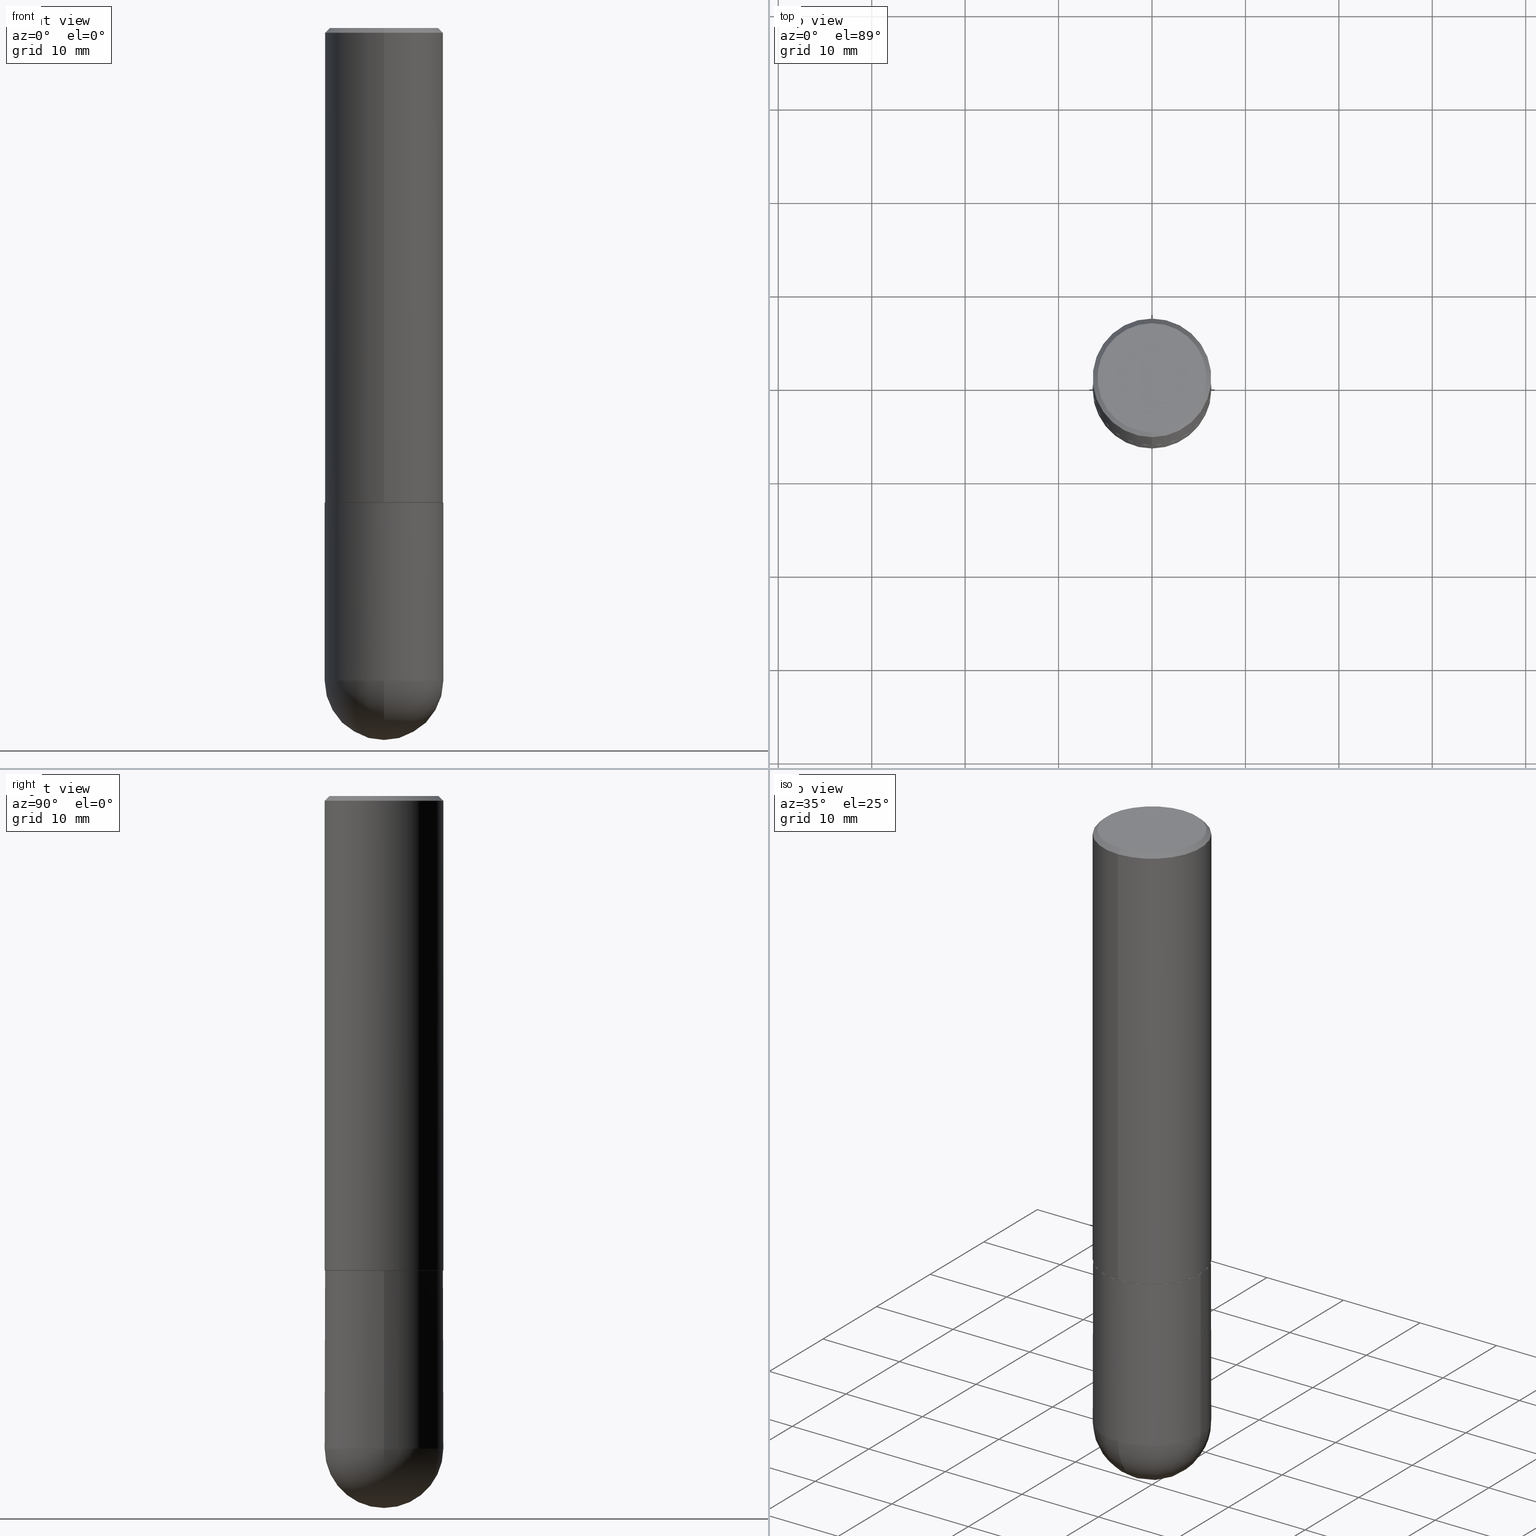
[diagram: canonical four-view strip — front | top / right | iso, engineering-drawing reading convention]
A machine part, canonical four-view strip (front | top / right | iso — engineering-drawing reading convention). The complete STEP part file that produces these views, byte-faithful:
ISO-10303-21;
HEADER;
FILE_DESCRIPTION (( 'STEP AP203' ),
    '1' );
FILE_NAME ('39364.STEP',
    '2024-02-21T19:37:25',
    ( '' ),
    ( '' ),
    'SwSTEP 2.0',
    'SolidWorks 2023',
    '' );
FILE_SCHEMA (( 'CONFIG_CONTROL_DESIGN' ));
ENDSEC;

DATA;
#1 = CARTESIAN_POINT ( 'NONE',  ( 4.888550873469898599E-29, -6.979387091779629703E-15, -1.999000000000000110 ) ) ;
#2 = EDGE_CURVE ( 'NONE', #392, #302, #327, .T. ) ;
#3 = DIRECTION ( 'NONE',  ( -2.445498185827862871E-29, 3.491439265522576099E-15, 1.000000000000000000 ) ) ;
#4 = FACE_OUTER_BOUND ( 'NONE', #239, .T. ) ;
#5 = VECTOR ( 'NONE', #3, 39.37007874015748143 ) ;
#6 = CC_DESIGN_SECURITY_CLASSIFICATION ( #200, ( #232 ) ) ;
#7 = EDGE_CURVE ( 'NONE', #302, #392, #145, .T. ) ;
#8 = CARTESIAN_POINT ( 'NONE',  ( 1.675911042644703577E-15, 0.2299999999999998712, -7.048649206616136781E-16 ) ) ;
#9 = DIRECTION ( 'NONE',  ( 0.000000000000000000, 0.000000000000000000, 1.000000000000000000 ) ) ;
#10 = ORIENTED_EDGE ( 'NONE', *, *, #156, .T. ) ;
#11 = EDGE_LOOP ( 'NONE', ( #298, #42 ) ) ;
#12 = EDGE_CURVE ( 'NONE', #401, #45, #28, .T. ) ;
#13 = AXIS2_PLACEMENT_3D ( 'NONE', #212, #318, #79 ) ;
#14 = AXIS2_PLACEMENT_3D ( 'NONE', #236, #357, #362 ) ;
#15 = CARTESIAN_POINT ( 'NONE',  ( 4.890996371655727423E-29, -6.982878531045153777E-15, -2.000000000000000444 ) ) ;
#16 = ORIENTED_EDGE ( 'NONE', *, *, #375, .F. ) ;
#17 = APPLICATION_PROTOCOL_DEFINITION ( 'international standard', 'config_control_design', 1994, #90 ) ;
#18 = ORIENTED_EDGE ( 'NONE', *, *, #72, .F. ) ;
#19 = APPROVAL_STATUS ( 'not_yet_approved' ) ;
#20 = ORIENTED_EDGE ( 'NONE', *, *, #197, .T. ) ;
#21 = LOCAL_TIME ( 14, 37, 25.00000000000000000, #179 ) ;
#22 = DATE_TIME_ROLE ( 'classification_date' ) ;
#23 = EDGE_LOOP ( 'NONE', ( #142, #364, #234, #40 ) ) ;
#24 = DIRECTION ( 'NONE',  ( -2.445498185827862591E-29, 3.491439265522576099E-15, 1.000000000000000000 ) ) ;
#25 = APPROVAL_DATE_TIME ( #115, #193 ) ;
#26 = CARTESIAN_POINT ( 'NONE',  ( 1.606081415867840278E-15, 0.2299999999999998712, -7.539479758659027611E-16 ) ) ;
#27 = ADVANCED_FACE ( 'NONE', ( #149 ), #280, .T. ) ;
#28 = CIRCLE ( 'NONE', #159, 0.2500000000000000000 ) ;
#29 = DIRECTION ( 'NONE',  ( -2.445468806185136597E-29, 3.491481338843145583E-15, 1.000000000000000000 ) ) ;
#30 = FACE_OUTER_BOUND ( 'NONE', #144, .T. ) ;
#31 = DIRECTION ( 'NONE',  ( -6.982962677686265922E-15, -1.000000000000000000, 3.278217592397112312E-15 ) ) ;
#32 = AXIS2_PLACEMENT_3D ( 'NONE', #342, #24, #251 ) ;
#33 = DIRECTION ( 'NONE',  ( -2.445498185827863151E-29, 3.491439265522576099E-15, 1.000000000000000000 ) ) ;
#34 = CIRCLE ( 'NONE', #256, 0.2500000000000002776 ) ;
#35 = ADVANCED_FACE ( 'NONE', ( #218 ), #54, .F. ) ;
#36 = LINE ( 'NONE', #351, #39 ) ;
#37 = CARTESIAN_POINT ( 'NONE',  ( -1.776356839400184989E-15, -0.2500000000000098810, -2.749999999999999556 ) ) ;
#38 = CARTESIAN_POINT ( 'NONE',  ( 6.725039217009125641E-29, -9.601573681818653015E-15, -2.750000000000000444 ) ) ;
#39 = VECTOR ( 'NONE', #349, 39.37007874015748143 ) ;
#40 = ORIENTED_EDGE ( 'NONE', *, *, #7, .T. ) ;
#41 = DIRECTION ( 'NONE',  ( -6.982962677686265133E-15, -1.000000000000000000, 3.291383124896702687E-15 ) ) ;
#42 = ORIENTED_EDGE ( 'NONE', *, *, #289, .F. ) ;
#43 = CARTESIAN_POINT ( 'NONE',  ( -2.400650449139562707E-45, 3.427410124241351957E-31, 9.816611040857844957E-17 ) ) ;
#44 = ADVANCED_FACE ( 'NONE', ( #121 ), #352, .T. ) ;
#45 = VERTEX_POINT ( 'NONE', #253 ) ;
#46 = AXIS2_PLACEMENT_3D ( 'NONE', #393, #109, #69 ) ;
#47 = DATE_AND_TIME ( #148, #241 ) ;
#48 = ORIENTED_EDGE ( 'NONE', *, *, #124, .F. ) ;
#49 = ADVANCED_FACE ( 'NONE', ( #151 ), #215, .T. ) ;
#50 = PERSON_AND_ORGANIZATION_ROLE ( 'classification_officer' ) ;
#51 = CARTESIAN_POINT ( 'NONE',  ( 4.890937612370273754E-29, -6.982962677686291954E-15, -2.000000000000000444 ) ) ;
#52 = AXIS2_PLACEMENT_3D ( 'NONE', #407, #374, #311 ) ;
#53 = LOCAL_TIME ( 14, 37, 25.00000000000000000, #312 ) ;
#54 = PLANE ( 'NONE',  #255 ) ;
#55 = ORIENTED_EDGE ( 'NONE', *, *, #375, .T. ) ;
#56 = PERSON_AND_ORGANIZATION_ROLE ( 'creator' ) ;
#57 = CARTESIAN_POINT ( 'NONE',  ( -0.2500000000000000000, -6.515911340352222809E-15, -2.750000000000000444 ) ) ;
#58 = APPROVAL_PERSON_ORGANIZATION ( #177, #111, #187 ) ;
#59 = ORIENTED_EDGE ( 'NONE', *, *, #106, .T. ) ;
#60 = CARTESIAN_POINT ( 'NONE',  ( 1.745740669421632745E-15, 0.2499999999999902300, -2.750000000000001332 ) ) ;
#61 = ADVANCED_FACE ( 'NONE', ( #81 ), #191, .F. ) ;
#62 = DIRECTION ( 'NONE',  ( -1.000000000000000000, 6.982962677686265922E-15, -4.876176775795935793E-29 ) ) ;
#63 = VECTOR ( 'NONE', #221, 39.37007874015748143 ) ;
#64 = CARTESIAN_POINT ( 'NONE',  ( 4.890996371655739930E-31, -6.982878531045171230E-17, -0.02000000000000005593 ) ) ;
#65 =( GEOMETRIC_REPRESENTATION_CONTEXT ( 3 ) GLOBAL_UNCERTAINTY_ASSIGNED_CONTEXT ( ( #367 ) ) GLOBAL_UNIT_ASSIGNED_CONTEXT ( ( #169, #273, #135 ) ) REPRESENTATION_CONTEXT ( 'NONE', 'WORKASPACE' ) );
#66 = LINE ( 'NONE', #192, #63 ) ;
#67 = CARTESIAN_POINT ( 'NONE',  ( 1.745740669421615390E-15, 0.2499999999999930334, -2.000000000000000888 ) ) ;
#68 = EDGE_LOOP ( 'NONE', ( #268, #55 ) ) ;
#69 = DIRECTION ( 'NONE',  ( -6.982962677686265133E-15, -1.000000000000000000, 3.291383124896702687E-15 ) ) ;
#70 = ORIENTED_EDGE ( 'NONE', *, *, #129, .T. ) ;
#71 = VERTEX_POINT ( 'NONE', #89 ) ;
#72 = EDGE_CURVE ( 'NONE', #108, #287, #150, .T. ) ;
#73 = ORIENTED_EDGE ( 'NONE', *, *, #87, .F. ) ;
#74 = AXIS2_PLACEMENT_3D ( 'NONE', #95, #380, #128 ) ;
#75 = DIRECTION ( 'NONE',  ( -2.445498185827863151E-29, 3.491439265522576099E-15, 1.000000000000000000 ) ) ;
#76 = VERTEX_POINT ( 'NONE', #57 ) ;
#77 = PRODUCT_DEFINITION ( 'UNKNOWN', '', #232, #85 ) ;
#78 = APPROVAL_STATUS ( 'not_yet_approved' ) ;
#79 = DIRECTION ( 'NONE',  ( -6.982962677686265922E-15, -1.000000000000000000, 3.483106191921935554E-15 ) ) ;
#80 = CALENDAR_DATE ( 2024, 21, 2 ) ;
#81 = FACE_OUTER_BOUND ( 'NONE', #11, .T. ) ;
#82 = AXIS2_PLACEMENT_3D ( 'NONE', #363, #134, #266 ) ;
#83 = EDGE_CURVE ( 'NONE', #176, #360, #119, .T. ) ;
#84 = PERSON_AND_ORGANIZATION ( #395, #146 ) ;
#85 = DESIGN_CONTEXT ( 'detailed design', #263, 'design' ) ;
#86 = EDGE_LOOP ( 'NONE', ( #18, #112, #168, #48 ) ) ;
#87 = EDGE_CURVE ( 'NONE', #389, #170, #205, .T. ) ;
#88 = PERSON_AND_ORGANIZATION ( #395, #146 ) ;
#89 = CARTESIAN_POINT ( 'NONE',  ( -1.646519519465166573E-15, -0.2299999999999998712, 9.011971414787705033E-16 ) ) ;
#90 = APPLICATION_CONTEXT ( 'configuration controlled 3d designs of mechanical parts and assemblies' ) ;
#91 = FACE_OUTER_BOUND ( 'NONE', #68, .T. ) ;
#92 = AXIS2_PLACEMENT_3D ( 'NONE', #38, #238, #303 ) ;
#93 = CARTESIAN_POINT ( 'NONE',  ( 1.772804125721499264E-15, 0.2489999999999930325, -2.000000000000001332 ) ) ;
#94 = CARTESIAN_POINT ( 'NONE',  ( 0.2500000000000000000, -1.003800884917404153E-14, -2.750000000000000444 ) ) ;
#95 = CARTESIAN_POINT ( 'NONE',  ( 6.725039217009125641E-29, -9.601573681818653015E-15, -2.750000000000000444 ) ) ;
#96 = ADVANCED_FACE ( 'NONE', ( #91 ), #346, .F. ) ;
#97 = CC_DESIGN_PERSON_AND_ORGANIZATION_ASSIGNMENT ( #344, #56, ( #232 ) ) ;
#98 = DIRECTION ( 'NONE',  ( -6.982962677686266711E-15, -1.000000000000000000, 3.491439265522576099E-15 ) ) ;
#99 = CONICAL_SURFACE ( 'NONE', #277, 0.2500000000000000000, 0.7853981633974477239 ) ;
#100 = DIRECTION ( 'NONE',  ( 6.982962677686265922E-15, 1.000000000000000000, -3.483106191921935554E-15 ) ) ;
#101 = DIRECTION ( 'NONE',  ( -6.982962677686265133E-15, -1.000000000000000000, 3.291383124896702687E-15 ) ) ;
#102 = ORIENTED_EDGE ( 'NONE', *, *, #267, .F. ) ;
#103 = DIRECTION ( 'NONE',  ( 1.000000000000000000, -6.982962677686266711E-15, 0.000000000000000000 ) ) ;
#104 = CIRCLE ( 'NONE', #74, 0.2500000000000000000 ) ;
#105 = ORIENTED_EDGE ( 'NONE', *, *, #2, .F. ) ;
#106 = EDGE_CURVE ( 'NONE', #173, #401, #66, .T. ) ;
#107 = DIRECTION ( 'NONE',  ( -2.445468806185136597E-29, 3.491481338843145583E-15, 1.000000000000000000 ) ) ;
#108 = VERTEX_POINT ( 'NONE', #93 ) ;
#109 = DIRECTION ( 'NONE',  ( -2.445498185827863151E-29, 3.491439265522576099E-15, 1.000000000000000000 ) ) ;
#110 = ORIENTED_EDGE ( 'NONE', *, *, #228, .F. ) ;
#111 = APPROVAL ( #19, 'UNSPECIFIED' ) ;
#112 = ORIENTED_EDGE ( 'NONE', *, *, #289, .T. ) ;
#113 = PERSON_AND_ORGANIZATION ( #395, #146 ) ;
#114 = ORIENTED_EDGE ( 'NONE', *, *, #386, .T. ) ;
#115 = DATE_AND_TIME ( #80, #53 ) ;
#116 = DIRECTION ( 'NONE',  ( -6.982962677686266711E-15, -1.000000000000000000, 3.491439265522576099E-15 ) ) ;
#117 = ADVANCED_FACE ( 'NONE', ( #4 ), #152, .T. ) ;
#118 = APPROVAL_ROLE ( '' ) ;
#119 = LINE ( 'NONE', #248, #405 ) ;
#120 = CC_DESIGN_APPROVAL ( #310, ( #77 ) ) ;
#121 = FACE_OUTER_BOUND ( 'NONE', #230, .T. ) ;
#122 = APPROVAL_ROLE ( '' ) ;
#123 = DIRECTION ( 'NONE',  ( -1.000000000000000000, 7.105427357601001070E-15, -4.926315508542082329E-29 ) ) ;
#124 = EDGE_CURVE ( 'NONE', #287, #360, #224, .T. ) ;
#125 = FACE_OUTER_BOUND ( 'NONE', #307, .T. ) ;
#126 = AXIS2_PLACEMENT_3D ( 'NONE', #240, #9, #203 ) ;
#127 = DIRECTION ( 'NONE',  ( -1.000000000000000000, 6.982962677686265922E-15, -4.883557194083113462E-29 ) ) ;
#128 = DIRECTION ( 'NONE',  ( 1.000000000000000000, -6.982962677686270655E-15, 0.000000000000000000 ) ) ;
#129 = EDGE_CURVE ( 'NONE', #360, #392, #353, .T. ) ;
#130 = CARTESIAN_POINT ( 'NONE',  ( -0.2500000000000000000, 1.776356839400250465E-15, -1.229733772563726445E-29 ) ) ;
#131 = LINE ( 'NONE', #262, #296 ) ;
#132 = CIRCLE ( 'NONE', #160, 0.2489999999999999991 ) ;
#133 = CARTESIAN_POINT ( 'NONE',  ( 7.015976219256266741E-29, -1.093331829968014633E-14, -3.000000000000000888 ) ) ;
#134 = DIRECTION ( 'NONE',  ( -2.445468806185136597E-29, 3.491481338843145583E-15, 1.000000000000000000 ) ) ;
#135 =( NAMED_UNIT ( * ) SI_UNIT ( $, .STERADIAN. ) SOLID_ANGLE_UNIT ( ) );
#136 = AXIS2_PLACEMENT_3D ( 'NONE', #43, #75, #388 ) ;
#137 = EDGE_LOOP ( 'NONE', ( #10, #244 ) ) ;
#138 = DIRECTION ( 'NONE',  ( -2.445498185827863151E-29, 3.491439265522576099E-15, 1.000000000000000000 ) ) ;
#139 = ORIENTED_EDGE ( 'NONE', *, *, #313, .F. ) ;
#140 = CC_DESIGN_DATE_AND_TIME_ASSIGNMENT ( #308, #22, ( #200 ) ) ;
#141 = MECHANICAL_CONTEXT ( 'NONE', #90, 'mechanical' ) ;
#142 = ORIENTED_EDGE ( 'NONE', *, *, #197, .F. ) ;
#143 = COORDINATED_UNIVERSAL_TIME_OFFSET ( 5, 0, .BEHIND. ) ;
#144 = EDGE_LOOP ( 'NONE', ( #272, #336, #105, #309 ) ) ;
#145 = CIRCLE ( 'NONE', #377, 0.2500000000000000000 ) ;
#146 = ORGANIZATION ( 'UNSPECIFIED', 'UNSPECIFIED', '' ) ;
#147 = EDGE_CURVE ( 'NONE', #76, #45, #409, .T. ) ;
#148 = CALENDAR_DATE ( 2024, 21, 2 ) ;
#149 = FACE_OUTER_BOUND ( 'NONE', #394, .T. ) ;
#150 = LINE ( 'NONE', #282, #249 ) ;
#151 = FACE_OUTER_BOUND ( 'NONE', #278, .T. ) ;
#152 = CONICAL_SURFACE ( 'NONE', #189, 0.2500000000000000000, 0.7853981633974477239 ) ;
#153 = CIRCLE ( 'NONE', #286, 0.2500000000000000000 ) ;
#154 = ORIENTED_EDGE ( 'NONE', *, *, #2, .T. ) ;
#155 = ADVANCED_FACE ( 'NONE', ( #30 ), #223, .T. ) ;
#156 = EDGE_CURVE ( 'NONE', #304, #71, #291, .T. ) ;
#157 = CARTESIAN_POINT ( 'NONE',  ( 4.888550873469898599E-29, -6.979387091779629703E-15, -1.999000000000000110 ) ) ;
#158 = CARTESIAN_POINT ( 'NONE',  ( 4.890996371655727423E-29, -6.982878531045153777E-15, -2.000000000000000444 ) ) ;
#159 = AXIS2_PLACEMENT_3D ( 'NONE', #51, #29, #180 ) ;
#160 = AXIS2_PLACEMENT_3D ( 'NONE', #15, #175, #101 ) ;
#161 = CARTESIAN_POINT ( 'NONE',  ( -1.715124499442882299E-15, -0.2500000000000000555, -0.01999999999999918510 ) ) ;
#162 = CC_DESIGN_PERSON_AND_ORGANIZATION_ASSIGNMENT ( #250, #365, ( #210 ) ) ;
#163 = DIRECTION ( 'NONE',  ( 2.445498185827863151E-29, -3.491439265522576099E-15, -1.000000000000000000 ) ) ;
#164 = DIRECTION ( 'NONE',  ( -4.851104656540961119E-15, -0.7071067811865495711, -0.7071067811865454633 ) ) ;
#165 = CARTESIAN_POINT ( 'NONE',  ( -1.715124499442882299E-15, -0.2500000000000000555, -0.01999999999999918510 ) ) ;
#166 = CC_DESIGN_APPROVAL ( #193, ( #200 ) ) ;
#167 = EDGE_CURVE ( 'NONE', #304, #302, #36, .T. ) ;
#168 = ORIENTED_EDGE ( 'NONE', *, *, #83, .T. ) ;
#169 =( CONVERSION_BASED_UNIT ( 'INCH', #329 ) LENGTH_UNIT ( ) NAMED_UNIT ( #359 ) );
#170 = VERTEX_POINT ( 'NONE', #37 ) ;
#171 = DIRECTION ( 'NONE',  ( 1.000000000000000000, -6.982962677686265922E-15, 4.883557194083112340E-29 ) ) ;
#172 = CIRCLE ( 'NONE', #225, 0.2489999999999999991 ) ;
#173 = VERTEX_POINT ( 'NONE', #94 ) ;
#174 = CC_DESIGN_PERSON_AND_ORGANIZATION_ASSIGNMENT ( #113, #306, ( #77 ) ) ;
#175 = DIRECTION ( 'NONE',  ( -2.445498185827863151E-29, 3.491439265522576099E-15, 1.000000000000000000 ) ) ;
#176 = VERTEX_POINT ( 'NONE', #384 ) ;
#177 = PERSON_AND_ORGANIZATION ( #395, #146 ) ;
#178 = ORIENTED_EDGE ( 'NONE', *, *, #167, .F. ) ;
#179 = COORDINATED_UNIVERSAL_TIME_OFFSET ( 5, 0, .BEHIND. ) ;
#180 = DIRECTION ( 'NONE',  ( 1.000000000000000000, -6.982962677686266711E-15, 0.000000000000000000 ) ) ;
#181 = AXIS2_PLACEMENT_3D ( 'NONE', #403, #219, #116 ) ;
#182 = CC_DESIGN_APPROVAL ( #111, ( #232 ) ) ;
#183 = ADVANCED_FACE ( 'NONE', ( #258 ), #99, .T. ) ;
#184 = VERTEX_POINT ( 'NONE', #60 ) ;
#185 = APPROVAL_STATUS ( 'not_yet_approved' ) ;
#186 = EDGE_LOOP ( 'NONE', ( #366, #338, #274, #397 ) ) ;
#187 = APPROVAL_ROLE ( '' ) ;
#188 = DIRECTION ( 'NONE',  ( -4.937700262164378437E-15, -0.7071067811865208164, 0.7071067811865739960 ) ) ;
#189 = AXIS2_PLACEMENT_3D ( 'NONE', #226, #163, #259 ) ;
#190 = AXIS2_PLACEMENT_3D ( 'NONE', #254, #378, #320 ) ;
#191 = PLANE ( 'NONE',  #32 ) ;
#192 = CARTESIAN_POINT ( 'NONE',  ( 0.2500000000000000000, -1.745740669421566678E-15, 1.219044193948983948E-29 ) ) ;
#193 = APPROVAL ( #185, 'UNSPECIFIED' ) ;
#194 = CARTESIAN_POINT ( 'NONE',  ( 1.776356839400276103E-15, 0.2499999999999933109, -1.999000000000000998 ) ) ;
#195 = CIRCLE ( 'NONE', #328, 0.2500000000000001110 ) ;
#196 = DIRECTION ( 'NONE',  ( -2.445498185827863151E-29, 3.491439265522576099E-15, 1.000000000000000000 ) ) ;
#197 = EDGE_CURVE ( 'NONE', #71, #392, #325, .T. ) ;
#198 = DIRECTION ( 'NONE',  ( -6.982962677686265922E-15, -1.000000000000000000, 3.491439265522576099E-15 ) ) ;
#199 = DIRECTION ( 'NONE',  ( -2.445468806185136877E-29, 3.491481338843145188E-15, 1.000000000000000000 ) ) ;
#200 = SECURITY_CLASSIFICATION ( '', '', #369 ) ;
#201 = EDGE_LOOP ( 'NONE', ( #73, #114, #316, #265 ) ) ;
#202 = CARTESIAN_POINT ( 'NONE',  ( 6.393919439095240515E-29, -1.007575604995870173E-14, -2.750000000000000444 ) ) ;
#203 = DIRECTION ( 'NONE',  ( 1.000000000000000000, 0.000000000000000000, 0.000000000000000000 ) ) ;
#204 = ORIENTED_EDGE ( 'NONE', *, *, #294, .T. ) ;
#205 = CIRCLE ( 'NONE', #322, 0.2500000000000001110 ) ;
#206 = AXIS2_PLACEMENT_3D ( 'NONE', #410, #127, #382 ) ;
#207 = ORIENTED_EDGE ( 'NONE', *, *, #305, .T. ) ;
#208 = PERSON_AND_ORGANIZATION ( #395, #146 ) ;
#209 = ORIENTED_EDGE ( 'NONE', *, *, #7, .F. ) ;
#210 = PRODUCT ( '39364', '39364', '', ( #141 ) ) ;
#211 = DATE_AND_TIME ( #337, #301 ) ;
#212 = CARTESIAN_POINT ( 'NONE',  ( 4.890996371655739930E-31, -6.982878531045171230E-17, -0.02000000000000005593 ) ) ;
#213 = DIRECTION ( 'NONE',  ( 6.982962677686265922E-15, 1.000000000000000000, -3.491439265522576099E-15 ) ) ;
#214 = AXIS2_PLACEMENT_3D ( 'NONE', #343, #246, #368 ) ;
#215 = CYLINDRICAL_SURFACE ( 'NONE', #214, 0.2500000000000000000 ) ;
#216 = APPROVAL_DATE_TIME ( #339, #111 ) ;
#217 = CC_DESIGN_PERSON_AND_ORGANIZATION_ASSIGNMENT ( #84, #50, ( #200 ) ) ;
#218 = FACE_OUTER_BOUND ( 'NONE', #137, .T. ) ;
#219 = DIRECTION ( 'NONE',  ( -2.445498185827863151E-29, 3.491439265522576099E-15, 1.000000000000000000 ) ) ;
#220 = CIRCLE ( 'NONE', #92, 0.2500000000000000000 ) ;
#221 = DIRECTION ( 'NONE',  ( -2.445468806185136877E-29, 3.491481338843145188E-15, 1.000000000000000000 ) ) ;
#222 = FACE_OUTER_BOUND ( 'NONE', #186, .T. ) ;
#223 = CYLINDRICAL_SURFACE ( 'NONE', #261, 0.2500000000000001110 ) ;
#224 = CIRCLE ( 'NONE', #260, 0.2500000000000002776 ) ;
#225 = AXIS2_PLACEMENT_3D ( 'NONE', #158, #138, #41 ) ;
#226 = CARTESIAN_POINT ( 'NONE',  ( 4.890996371655739930E-31, -6.982878531045171230E-17, -0.02000000000000005593 ) ) ;
#227 = DIRECTION ( 'NONE',  ( 2.445498185827863151E-29, -3.491439265522576099E-15, -1.000000000000000000 ) ) ;
#228 = EDGE_CURVE ( 'NONE', #287, #302, #131, .T. ) ;
#229 = CARTESIAN_POINT ( 'NONE',  ( 4.890937612370273754E-29, -6.982962677686291954E-15, -2.000000000000000444 ) ) ;
#230 = EDGE_LOOP ( 'NONE', ( #204, #300, #102, #333 ) ) ;
#231 = CLOSED_SHELL ( 'NONE', ( #49, #283, #412, #96, #281 ) ) ;
#232 = PRODUCT_DEFINITION_FORMATION_WITH_SPECIFIED_SOURCE ( 'ANY', '', #210, .NOT_KNOWN. ) ;
#233 = FACE_OUTER_BOUND ( 'NONE', #201, .T. ) ;
#234 = ORIENTED_EDGE ( 'NONE', *, *, #167, .T. ) ;
#235 = MANIFOLD_SOLID_BREP ( 'Body-Move/Copy2[2]', #398 ) ;
#236 = CARTESIAN_POINT ( 'NONE',  ( 6.393919439095240515E-29, -1.007575604995870173E-14, -2.750000000000000444 ) ) ;
#237 = EDGE_CURVE ( 'NONE', #76, #170, #104, .T. ) ;
#238 = DIRECTION ( 'NONE',  ( -2.445468806185136597E-29, 3.491481338843145583E-15, 1.000000000000000000 ) ) ;
#239 = EDGE_LOOP ( 'NONE', ( #139, #20, #154, #178 ) ) ;
#240 = CARTESIAN_POINT ( 'NONE',  ( 0.000000000000000000, 0.000000000000000000, 0.000000000000000000 ) ) ;
#241 = LOCAL_TIME ( 14, 37, 25.00000000000000000, #143 ) ;
#242 = ORIENTED_EDGE ( 'NONE', *, *, #147, .T. ) ;
#243 = APPLICATION_PROTOCOL_DEFINITION ( 'international standard', 'config_control_design', 1994, #263 ) ;
#244 = ORIENTED_EDGE ( 'NONE', *, *, #313, .T. ) ;
#245 = PRODUCT_RELATED_PRODUCT_CATEGORY ( 'detail', '', ( #210 ) ) ;
#246 = DIRECTION ( 'NONE',  ( -2.445468806185136597E-29, 3.491481338843145583E-15, 1.000000000000000000 ) ) ;
#247 = COORDINATED_UNIVERSAL_TIME_OFFSET ( 5, 0, .BEHIND. ) ;
#248 = CARTESIAN_POINT ( 'NONE',  ( -1.738757706743831162E-15, -0.2490000000000069658, -1.999999999999999778 ) ) ;
#249 = VECTOR ( 'NONE', #404, 39.37007874015748854 ) ;
#250 = PERSON_AND_ORGANIZATION ( #395, #146 ) ;
#251 = DIRECTION ( 'NONE',  ( -6.982962677686265922E-15, -1.000000000000000000, 3.491439265522576099E-15 ) ) ;
#252 = APPROVAL_DATE_TIME ( #211, #310 ) ;
#253 = CARTESIAN_POINT ( 'NONE',  ( -0.2500000000000000000, -6.515911340352221231E-15, -2.000000000000000444 ) ) ;
#254 = CARTESIAN_POINT ( 'NONE',  ( 0.000000000000000000, 0.000000000000000000, 0.000000000000000000 ) ) ;
#255 = AXIS2_PLACEMENT_3D ( 'NONE', #26, #408, #213 ) ;
#256 = AXIS2_PLACEMENT_3D ( 'NONE', #157, #288, #31 ) ;
#257 = ADVANCED_BREP_SHAPE_REPRESENTATION ( '39364', ( #371, #235, #126 ), #65 ) ;
#258 = FACE_OUTER_BOUND ( 'NONE', #23, .T. ) ;
#259 = DIRECTION ( 'NONE',  ( 6.982962677686265922E-15, 1.000000000000000000, -3.483106191921935554E-15 ) ) ;
#260 = AXIS2_PLACEMENT_3D ( 'NONE', #1, #324, #295 ) ;
#261 = AXIS2_PLACEMENT_3D ( 'NONE', #383, #33, #98 ) ;
#262 = CARTESIAN_POINT ( 'NONE',  ( 1.776356839400251254E-15, 0.2500000000000001110, -8.728598163806444193E-16 ) ) ;
#263 = APPLICATION_CONTEXT ( 'configuration controlled 3d designs of mechanical parts and assemblies' ) ;
#264 = CARTESIAN_POINT ( 'NONE',  ( 6.725039217009125641E-29, -9.601573681818653015E-15, -2.750000000000000444 ) ) ;
#265 = ORIENTED_EDGE ( 'NONE', *, *, #299, .F. ) ;
#266 = DIRECTION ( 'NONE',  ( 1.000000000000000000, -6.982962677686270655E-15, 0.000000000000000000 ) ) ;
#267 = EDGE_CURVE ( 'NONE', #360, #287, #34, .T. ) ;
#268 = ORIENTED_EDGE ( 'NONE', *, *, #12, .T. ) ;
#269 =( LENGTH_UNIT ( ) NAMED_UNIT ( * ) SI_UNIT ( $, .METRE. ) );
#270 = ORIENTED_EDGE ( 'NONE', *, *, #147, .F. ) ;
#271 = FACE_OUTER_BOUND ( 'NONE', #86, .T. ) ;
#272 = ORIENTED_EDGE ( 'NONE', *, *, #267, .T. ) ;
#273 =( NAMED_UNIT ( * ) PLANE_ANGLE_UNIT ( ) SI_UNIT ( $, .RADIAN. ) );
#274 = ORIENTED_EDGE ( 'NONE', *, *, #237, .F. ) ;
#275 = PRODUCT_DEFINITION_SHAPE ( 'NONE', 'NONE',  #77 ) ;
#276 = DATE_TIME_ROLE ( 'creation_date' ) ;
#277 = AXIS2_PLACEMENT_3D ( 'NONE', #64, #227, #100 ) ;
#278 = EDGE_LOOP ( 'NONE', ( #387, #242, #314, #330, #207 ) ) ;
#279 = PERSON_AND_ORGANIZATION ( #395, #146 ) ;
#280 = CYLINDRICAL_SURFACE ( 'NONE', #181, 0.2500000000000001110 ) ;
#281 = ADVANCED_FACE ( 'NONE', ( #125 ), #292, .T. ) ;
#282 = CARTESIAN_POINT ( 'NONE',  ( 1.769251412042698169E-15, 0.2489999999999930325, -2.000000000000001332 ) ) ;
#283 = ADVANCED_FACE ( 'NONE', ( #222 ), #290, .T. ) ;
#284 = SHAPE_DEFINITION_REPRESENTATION ( #275, #257 ) ;
#285 = DIRECTION ( 'NONE',  ( -6.982962677686265922E-15, -1.000000000000000000, 3.483106191921935554E-15 ) ) ;
#286 = AXIS2_PLACEMENT_3D ( 'NONE', #229, #107, #103 ) ;
#287 = VERTEX_POINT ( 'NONE', #194 ) ;
#288 = DIRECTION ( 'NONE',  ( -2.445498185827863151E-29, 3.491439265522576099E-15, 1.000000000000000000 ) ) ;
#289 = EDGE_CURVE ( 'NONE', #108, #176, #172, .T. ) ;
#290 = SPHERICAL_SURFACE ( 'NONE', #206, 0.2500000000000001110 ) ;
#291 = CIRCLE ( 'NONE', #406, 0.2299999999999998712 ) ;
#292 = CYLINDRICAL_SURFACE ( 'NONE', #190, 0.2500000000000000000 ) ;
#293 = CARTESIAN_POINT ( 'NONE',  ( -1.745740669421567467E-15, -0.2500000000000001110, 8.728598163806444193E-16 ) ) ;
#294 = EDGE_CURVE ( 'NONE', #176, #108, #132, .T. ) ;
#295 = DIRECTION ( 'NONE',  ( -6.982962677686265922E-15, -1.000000000000000000, 3.278217592397112312E-15 ) ) ;
#296 = VECTOR ( 'NONE', #354, 39.37007874015748143 ) ;
#297 = DIRECTION ( 'NONE',  ( -2.445468806185136597E-29, 3.491481338843145583E-15, 1.000000000000000000 ) ) ;
#298 = ORIENTED_EDGE ( 'NONE', *, *, #294, .F. ) ;
#299 = EDGE_CURVE ( 'NONE', #170, #173, #399, .T. ) ;
#300 = ORIENTED_EDGE ( 'NONE', *, *, #72, .T. ) ;
#301 = LOCAL_TIME ( 14, 37, 25.00000000000000000, #247 ) ;
#302 = VERTEX_POINT ( 'NONE', #385 ) ;
#303 = DIRECTION ( 'NONE',  ( 1.000000000000000000, -6.982962677686270655E-15, 0.000000000000000000 ) ) ;
#304 = VERTEX_POINT ( 'NONE', #8 ) ;
#305 = EDGE_CURVE ( 'NONE', #173, #184, #370, .T. ) ;
#306 = PERSON_AND_ORGANIZATION_ROLE ( 'creator' ) ;
#307 = EDGE_LOOP ( 'NONE', ( #270, #332, #355, #59, #16 ) ) ;
#308 = DATE_AND_TIME ( #315, #21 ) ;
#309 = ORIENTED_EDGE ( 'NONE', *, *, #129, .F. ) ;
#310 = APPROVAL ( #78, 'UNSPECIFIED' ) ;
#311 = DIRECTION ( 'NONE',  ( -6.982962677686265133E-15, -1.000000000000000000, 3.291383124896702687E-15 ) ) ;
#312 = COORDINATED_UNIVERSAL_TIME_OFFSET ( 5, 0, .BEHIND. ) ;
#313 = EDGE_CURVE ( 'NONE', #71, #304, #323, .T. ) ;
#314 = ORIENTED_EDGE ( 'NONE', *, *, #12, .F. ) ;
#315 = CALENDAR_DATE ( 2024, 21, 2 ) ;
#316 = ORIENTED_EDGE ( 'NONE', *, *, #305, .F. ) ;
#317 = CONICAL_SURFACE ( 'NONE', #46, 0.2489999999999999991, 0.7853981633974141952 ) ;
#318 = DIRECTION ( 'NONE',  ( -2.445498185827863151E-29, 3.491439265522576099E-15, 1.000000000000000000 ) ) ;
#319 = CC_DESIGN_PERSON_AND_ORGANIZATION_ASSIGNMENT ( #88, #402, ( #232 ) ) ;
#320 = DIRECTION ( 'NONE',  ( 1.000000000000000000, -6.982962677686266711E-15, 4.876176775795935793E-29 ) ) ;
#321 = DIRECTION ( 'NONE',  ( 2.438088387897960049E-29, -3.491481338843145188E-15, -1.000000000000000000 ) ) ;
#322 = AXIS2_PLACEMENT_3D ( 'NONE', #372, #123, #376 ) ;
#323 = CIRCLE ( 'NONE', #136, 0.2299999999999998712 ) ;
#324 = DIRECTION ( 'NONE',  ( -2.445498185827863151E-29, 3.491439265522576099E-15, 1.000000000000000000 ) ) ;
#325 = LINE ( 'NONE', #161, #347 ) ;
#326 = CARTESIAN_POINT ( 'NONE',  ( -1.745740669421519543E-15, -0.2500000000000072164, -1.998999999999999444 ) ) ;
#327 = CIRCLE ( 'NONE', #13, 0.2500000000000000000 ) ;
#328 = AXIS2_PLACEMENT_3D ( 'NONE', #202, #171, #391 ) ;
#329 = LENGTH_MEASURE_WITH_UNIT ( LENGTH_MEASURE( 0.02539999999999999897 ), #269 );
#330 = ORIENTED_EDGE ( 'NONE', *, *, #106, .F. ) ;
#331 = SPHERICAL_SURFACE ( 'NONE', #14, 0.2500000000000001110 ) ;
#332 = ORIENTED_EDGE ( 'NONE', *, *, #237, .T. ) ;
#333 = ORIENTED_EDGE ( 'NONE', *, *, #83, .F. ) ;
#334 = AXIS2_PLACEMENT_3D ( 'NONE', #67, #321, #62 ) ;
#335 = CARTESIAN_POINT ( 'NONE',  ( 0.2500000000000000000, -8.728703347107858632E-15, -2.000000000000000444 ) ) ;
#336 = ORIENTED_EDGE ( 'NONE', *, *, #228, .T. ) ;
#337 = CALENDAR_DATE ( 2024, 21, 2 ) ;
#338 = ORIENTED_EDGE ( 'NONE', *, *, #87, .T. ) ;
#339 = DATE_AND_TIME ( #373, #356 ) ;
#340 = CARTESIAN_POINT ( 'NONE',  ( 4.890996371655739930E-31, -6.982878531045171230E-17, -0.02000000000000005593 ) ) ;
#341 = AXIS2_PLACEMENT_3D ( 'NONE', #264, #297, #396 ) ;
#342 = CARTESIAN_POINT ( 'NONE',  ( 4.890996371655727423E-29, -6.982878531045153777E-15, -2.000000000000000444 ) ) ;
#343 = CARTESIAN_POINT ( 'NONE',  ( 0.000000000000000000, 0.000000000000000000, 0.000000000000000000 ) ) ;
#344 = PERSON_AND_ORGANIZATION ( #395, #146 ) ;
#345 = DIRECTION ( 'NONE',  ( -2.445498185827863151E-29, 3.491439265522576099E-15, 1.000000000000000000 ) ) ;
#346 = PLANE ( 'NONE',  #334 ) ;
#347 = VECTOR ( 'NONE', #164, 39.37007874015748143 ) ;
#348 = CC_DESIGN_DATE_AND_TIME_ASSIGNMENT ( #47, #276, ( #77 ) ) ;
#349 = DIRECTION ( 'NONE',  ( 4.937700262164544887E-15, 0.7071067811865446862, -0.7071067811865503483 ) ) ;
#350 = CARTESIAN_POINT ( 'NONE',  ( -2.400650449139562707E-45, 3.427410124241351957E-31, 9.816611040857844957E-17 ) ) ;
#351 = CARTESIAN_POINT ( 'NONE',  ( 1.745740669421566875E-15, 0.2499999999999999167, -0.02000000000000092676 ) ) ;
#352 = CONICAL_SURFACE ( 'NONE', #52, 0.2489999999999999991, 0.7853981633974141952 ) ;
#353 = LINE ( 'NONE', #293, #5 ) ;
#354 = DIRECTION ( 'NONE',  ( -2.445498185827862871E-29, 3.491439265522576099E-15, 1.000000000000000000 ) ) ;
#355 = ORIENTED_EDGE ( 'NONE', *, *, #299, .T. ) ;
#356 = LOCAL_TIME ( 14, 37, 25.00000000000000000, #400 ) ;
#357 = DIRECTION ( 'NONE',  ( -1.000000000000000000, 6.982962677686265922E-15, -4.883557194083113462E-29 ) ) ;
#358 = ORIENTED_EDGE ( 'NONE', *, *, #124, .T. ) ;
#359 = DIMENSIONAL_EXPONENTS ( 1.000000000000000000, 0.000000000000000000, 0.000000000000000000, 0.000000000000000000, 0.000000000000000000, 0.000000000000000000, 0.000000000000000000 ) ;
#360 = VERTEX_POINT ( 'NONE', #326 ) ;
#361 = ADVANCED_FACE ( 'NONE', ( #271 ), #317, .T. ) ;
#362 = DIRECTION ( 'NONE',  ( 6.982962677686265922E-15, 1.000000000000000000, -4.370956789862818783E-15 ) ) ;
#363 = CARTESIAN_POINT ( 'NONE',  ( 6.725039217009125641E-29, -9.601573681818653015E-15, -2.750000000000000444 ) ) ;
#364 = ORIENTED_EDGE ( 'NONE', *, *, #156, .F. ) ;
#365 = PERSON_AND_ORGANIZATION_ROLE ( 'design_owner' ) ;
#366 = ORIENTED_EDGE ( 'NONE', *, *, #386, .F. ) ;
#367 = UNCERTAINTY_MEASURE_WITH_UNIT (LENGTH_MEASURE( 1.000000000000000082E-05 ), #169, 'distance_accuracy_value', 'NONE');
#368 = DIRECTION ( 'NONE',  ( 1.000000000000000000, -6.982962677686266711E-15, 4.876176775795935793E-29 ) ) ;
#369 = SECURITY_CLASSIFICATION_LEVEL ( 'unclassified' ) ;
#370 = CIRCLE ( 'NONE', #82, 0.2500000000000000000 ) ;
#371 = MANIFOLD_SOLID_BREP ( 'Body-Move/Copy2[1]', #231 ) ;
#372 = CARTESIAN_POINT ( 'NONE',  ( 6.393919439095240515E-29, -1.007575604995870173E-14, -2.750000000000000444 ) ) ;
#373 = CALENDAR_DATE ( 2024, 21, 2 ) ;
#374 = DIRECTION ( 'NONE',  ( -2.445498185827863151E-29, 3.491439265522576099E-15, 1.000000000000000000 ) ) ;
#375 = EDGE_CURVE ( 'NONE', #45, #401, #153, .T. ) ;
#376 = DIRECTION ( 'NONE',  ( -7.105427357601001859E-15, -1.000000000000000000, 0.000000000000000000 ) ) ;
#377 = AXIS2_PLACEMENT_3D ( 'NONE', #340, #345, #285 ) ;
#378 = DIRECTION ( 'NONE',  ( -2.445468806185136597E-29, 3.491481338843145583E-15, 1.000000000000000000 ) ) ;
#379 = APPROVAL_PERSON_ORGANIZATION ( #208, #310, #122 ) ;
#380 = DIRECTION ( 'NONE',  ( -2.445468806185136597E-29, 3.491481338843145583E-15, 1.000000000000000000 ) ) ;
#381 = EDGE_CURVE ( 'NONE', #184, #76, #220, .T. ) ;
#382 = DIRECTION ( 'NONE',  ( 6.982962677686265922E-15, 1.000000000000000000, -4.370956789862818783E-15 ) ) ;
#383 = CARTESIAN_POINT ( 'NONE',  ( 0.000000000000000000, 0.000000000000000000, 0.000000000000000000 ) ) ;
#384 = CARTESIAN_POINT ( 'NONE',  ( -1.738757706743831162E-15, -0.2490000000000069658, -1.999999999999999778 ) ) ;
#385 = CARTESIAN_POINT ( 'NONE',  ( 1.745740669421566875E-15, 0.2499999999999999167, -0.02000000000000092676 ) ) ;
#386 = EDGE_CURVE ( 'NONE', #389, #184, #195, .T. ) ;
#387 = ORIENTED_EDGE ( 'NONE', *, *, #381, .T. ) ;
#388 = DIRECTION ( 'NONE',  ( -6.982962677686265922E-15, -1.000000000000000000, 3.491439265522576099E-15 ) ) ;
#389 = VERTEX_POINT ( 'NONE', #133 ) ;
#390 = VECTOR ( 'NONE', #199, 39.37007874015748143 ) ;
#391 = DIRECTION ( 'NONE',  ( 6.982962677686266711E-15, 1.000000000000000000, 0.000000000000000000 ) ) ;
#392 = VERTEX_POINT ( 'NONE', #165 ) ;
#393 = CARTESIAN_POINT ( 'NONE',  ( 4.890996371655727423E-29, -6.982878531045153777E-15, -2.000000000000000444 ) ) ;
#394 = EDGE_LOOP ( 'NONE', ( #110, #358, #70, #209 ) ) ;
#395 = PERSON ( 'UNSPECIFIED', 'UNSPECIFIED', 'UNSPECIFIED', ('UNSPECIFIED'), ('UNSPECIFIED'), ('UNSPECIFIED') ) ;
#396 = DIRECTION ( 'NONE',  ( 1.000000000000000000, -6.982962677686270655E-15, 0.000000000000000000 ) ) ;
#397 = ORIENTED_EDGE ( 'NONE', *, *, #381, .F. ) ;
#398 = CLOSED_SHELL ( 'NONE', ( #44, #155, #117, #183, #27, #361, #61, #35 ) ) ;
#399 = CIRCLE ( 'NONE', #341, 0.2500000000000000000 ) ;
#400 = COORDINATED_UNIVERSAL_TIME_OFFSET ( 5, 0, .BEHIND. ) ;
#401 = VERTEX_POINT ( 'NONE', #335 ) ;
#402 = PERSON_AND_ORGANIZATION_ROLE ( 'design_supplier' ) ;
#403 = CARTESIAN_POINT ( 'NONE',  ( 0.000000000000000000, 0.000000000000000000, 0.000000000000000000 ) ) ;
#404 = DIRECTION ( 'NONE',  ( 5.024295867787889629E-15, 0.7071067811865257013, 0.7071067811865691111 ) ) ;
#405 = VECTOR ( 'NONE', #188, 39.37007874015748854 ) ;
#406 = AXIS2_PLACEMENT_3D ( 'NONE', #350, #196, #198 ) ;
#407 = CARTESIAN_POINT ( 'NONE',  ( 4.890996371655727423E-29, -6.982878531045153777E-15, -2.000000000000000444 ) ) ;
#408 = DIRECTION ( 'NONE',  ( 2.445498185827862591E-29, -3.491439265522576099E-15, -1.000000000000000000 ) ) ;
#409 = LINE ( 'NONE', #130, #390 ) ;
#410 = CARTESIAN_POINT ( 'NONE',  ( 6.393919439095240515E-29, -1.007575604995870173E-14, -2.750000000000000444 ) ) ;
#411 = APPROVAL_PERSON_ORGANIZATION ( #279, #193, #118 ) ;
#412 = ADVANCED_FACE ( 'NONE', ( #233 ), #331, .T. ) ;
ENDSEC;
END-ISO-10303-21;
